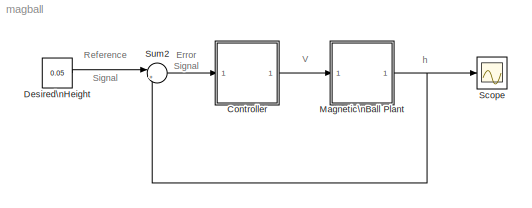
MODEL magball
KIND model
CONFIG PreLoadFcn = magballdat
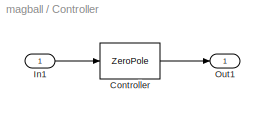
BLOCK [SubSystem] Controller
  Ports = [1, 1]
  TreatAsAtomicUnit = off
BLOCK [ZeroPole] Controller/Controller
  Gain = -3.3057e+004
  Poles = [0 -1000]
  Zeros = [-11.5000+5.7900i,-11.5000-5.7900i]
BLOCK [Inport] Controller/In1
  IconDisplay = Port number
BLOCK [Outport] Controller/Out1
  IconDisplay = Port number
BLOCK [Constant] Desired\nHeight
  Value = 0.05
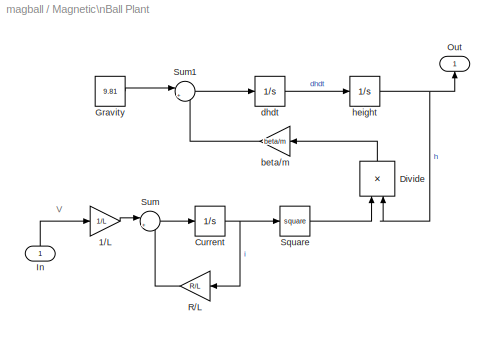
BLOCK [SubSystem] Magnetic\nBall Plant
  Ports = [1, 1]
  TreatAsAtomicUnit = off
BLOCK [Gain] Magnetic\nBall Plant/1//L
  Gain = 1/L
  OutDataTypeMode = Inherit via internal rule
  ParameterDataTypeMode = Inherit via internal rule
  SaturateOnIntegerOverflow = off
BLOCK [Integrator] Magnetic\nBall Plant/Current
  InitialCondition = 7.0036
  Ports = [1, 1]
BLOCK [Product] Magnetic\nBall Plant/Divide
  InputSameDT = off
  Inputs = */
  OutDataTypeMode = Inherit via internal rule
  OutScaling = 2^-10
  Ports = [2, 1]
  RndMeth = Floor
  SaturateOnIntegerOverflow = off
BLOCK [Constant] Magnetic\nBall Plant/Gravity
  Value = 9.81
BLOCK [Inport] Magnetic\nBall Plant/In
  IconDisplay = Port number
BLOCK [Outport] Magnetic\nBall Plant/Out
  IconDisplay = Port number
BLOCK [Gain] Magnetic\nBall Plant/R//L
  Gain = R/L
  OutDataTypeMode = Inherit via internal rule
  ParameterDataTypeMode = Inherit via internal rule
  SaturateOnIntegerOverflow = off
BLOCK [Math] Magnetic\nBall Plant/Square
  Operator = square
  Ports = [1, 1]
BLOCK [Sum] Magnetic\nBall Plant/Sum
  IconShape = round
  InputSameDT = off
  Inputs = |+-
  OutDataTypeMode = Inherit via internal rule
  Ports = [2, 1]
  SaturateOnIntegerOverflow = off
BLOCK [Sum] Magnetic\nBall Plant/Sum1
  IconShape = round
  InputSameDT = off
  Inputs = |+-
  OutDataTypeMode = Inherit via internal rule
  Ports = [2, 1]
  SaturateOnIntegerOverflow = off
BLOCK [Gain] Magnetic\nBall Plant/beta//m
  Gain = beta/m
  OutDataTypeMode = Inherit via internal rule
  ParameterDataTypeMode = Inherit via internal rule
  SaturateOnIntegerOverflow = off
BLOCK [Integrator] Magnetic\nBall Plant/dhdt
  Ports = [1, 1]
BLOCK [Integrator] Magnetic\nBall Plant/height
  InitialCondition = 0.05
  Ports = [1, 1]
BLOCK [Scope] Scope
  DataFormat = StructureWithTime
  NumInputPorts = 1
  Ports = [1]
  SaveName = ScopeData1
BLOCK [Sum] Sum2
  IconShape = round
  InputSameDT = off
  Inputs = |+-
  OutDataTypeMode = Inherit via internal rule
  Ports = [2, 1]
  SaturateOnIntegerOverflow = off
ANNOTATION (root): Error\nSignal
ANNOTATION (root): Reference \nSignal
ANNOTATION (root): V
ANNOTATION (root): h
ANNOTATION Magnetic\nBall Plant: V
LINE Controller/Controller:1 -> Controller/Out1:1
LINE Controller/In1:1 -> Controller/Controller:1
LINE Controller:1 -> Magnetic\nBall Plant:1
LINE Desired\nHeight:1 -> Sum2:1
LINE Magnetic\nBall Plant/1//L:1 -> Magnetic\nBall Plant/Sum:1
NET Magnetic\nBall Plant/Current:1 -> Magnetic\nBall Plant/R//L:1, Magnetic\nBall Plant/Square:1
LINE Magnetic\nBall Plant/Divide:1 -> Magnetic\nBall Plant/beta//m:1
LINE Magnetic\nBall Plant/Gravity:1 -> Magnetic\nBall Plant/Sum1:1
LINE Magnetic\nBall Plant/In:1 -> Magnetic\nBall Plant/1//L:1
LINE Magnetic\nBall Plant/R//L:1 -> Magnetic\nBall Plant/Sum:2
LINE Magnetic\nBall Plant/Square:1 -> Magnetic\nBall Plant/Divide:1
LINE Magnetic\nBall Plant/Sum1:1 -> Magnetic\nBall Plant/dhdt:1
LINE Magnetic\nBall Plant/Sum:1 -> Magnetic\nBall Plant/Current:1
LINE Magnetic\nBall Plant/beta//m:1 -> Magnetic\nBall Plant/Sum1:2
LINE Magnetic\nBall Plant/dhdt:1 -> Magnetic\nBall Plant/height:1
NET Magnetic\nBall Plant/height:1 -> Magnetic\nBall Plant/Divide:2, Magnetic\nBall Plant/Out:1
NET Magnetic\nBall Plant:1 -> Scope:1, Sum2:2
LINE Sum2:1 -> Controller:1
note: NET lines group one-source signal fan-out (src -> all destinations, sorted); 1:1 wires keep LINE
